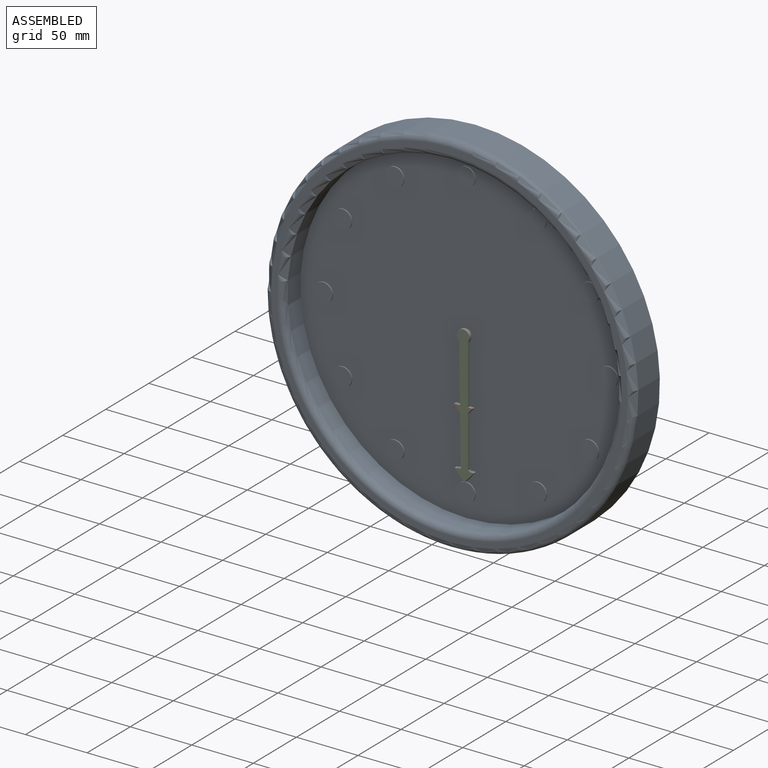
[diagram: assembled view]
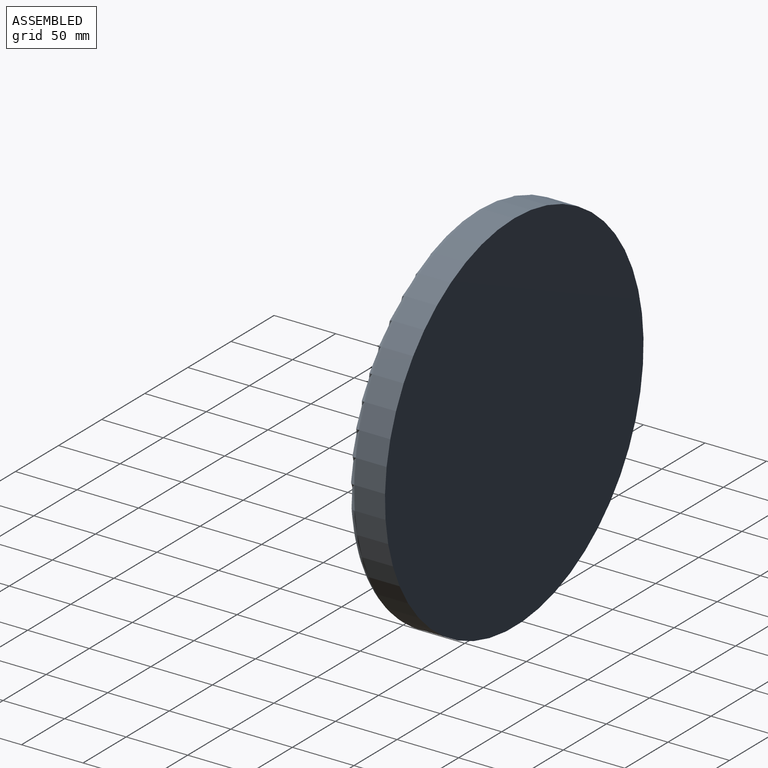
[diagram: assembled view, second angle]
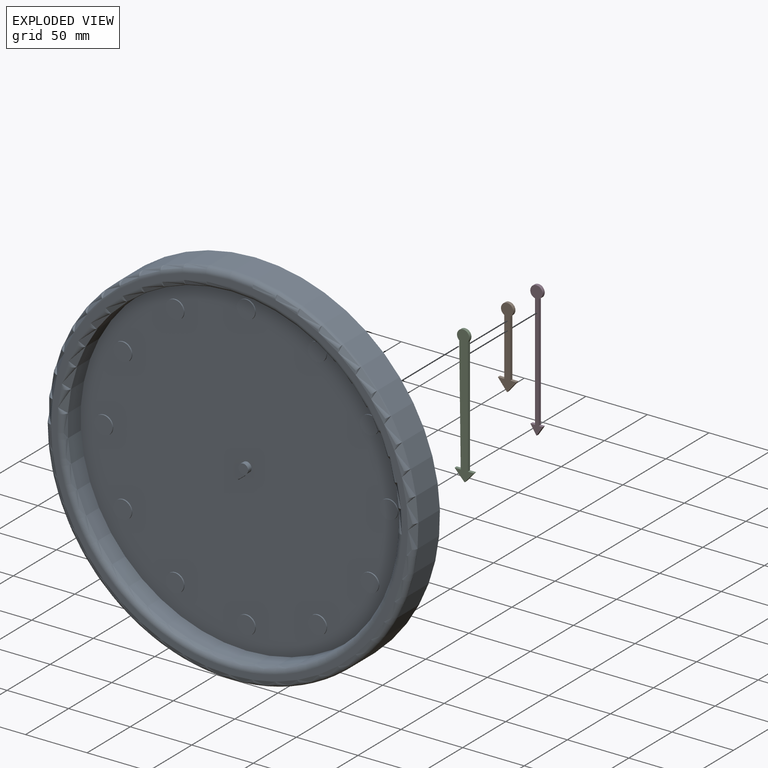
[diagram: exploded view]
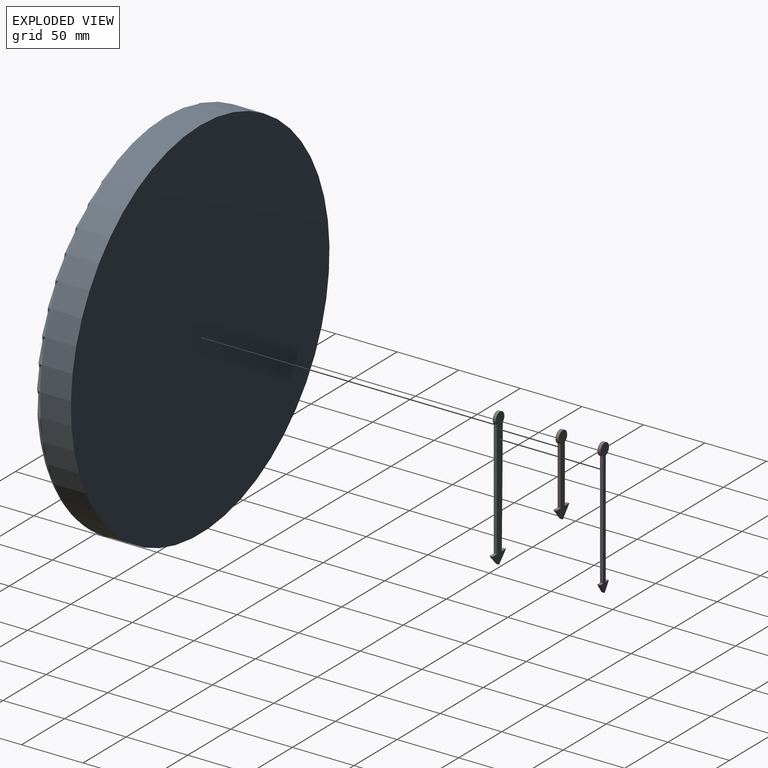
[diagram: exploded view, second angle]
ASSEMBLY  parts=4 mates=3
PART A: 33 faces, bbox 324.7x30x324.7 mm
  f0: plane 270x270mm, normal (0,-1,0), area 55084.7mm2, adj f1,f8,f9,f11,f13,f15,f17,f19
  f1: cylinder r=135mm len=270mm, axis (0,1,0), area 12723.5mm2, adj f0,f2
  f2: torus R=140mm, axis (0,1,0), area 6751.6mm2, adj f1,f3
  f3: plane 290x290mm, normal (0,-1,0), area 4476.8mm2, adj f2,f4
  f4: torus R=145mm, axis (0,1,0), area 7312.5mm2, adj f3,f5
  f5: cylinder r=150mm len=300mm, axis (0,1,0), area 23561.9mm2, adj f4,f6
  f6: plane 300x300mm, normal (0,1,0), area 70685.8mm2, adj f5
  f7: plane 8x8mm, normal (0,-1,0), area 50.3mm2, adj f8
  f8: cylinder r=4mm len=8mm, axis (0,1,0), area 100.7mm2, adj f0,f7
  f9: cylinder r=7.5mm len=15mm, axis (0,1,0), area 47.1mm2, adj f0,f10
  f10: plane 15x15mm, normal (0,-1,0), area 176.7mm2, adj f9
  f11: cylinder r=7.5mm len=15mm, axis (0,1,0), area 47.1mm2, adj f0,f12
  f12: plane 15x15mm, normal (0,-1,0), area 176.7mm2, adj f11
  f13: cylinder r=7.5mm len=15mm, axis (0,1,0), area 47.1mm2, adj f0,f14
  f14: plane 15x15mm, normal (0,-1,0), area 176.7mm2, adj f13
  f15: cylinder r=7.5mm len=15mm, axis (0,1,0), area 47.1mm2, adj f0,f16
  f16: plane 15x15mm, normal (0,-1,0), area 176.7mm2, adj f15
  f17: cylinder r=7.5mm len=15mm, axis (0,1,0), area 47.1mm2, adj f0,f18
  f18: plane 15x15mm, normal (0,-1,0), area 176.7mm2, adj f17
  f19: cylinder r=7.5mm len=15mm, axis (0,1,0), area 47.1mm2, adj f0,f20
  f20: plane 15x15mm, normal (0,-1,0), area 176.7mm2, adj f19
  f21: cylinder r=7.5mm len=15mm, axis (0,1,0), area 47.1mm2, adj f0,f22
  f22: plane 15x15mm, normal (0,-1,0), area 176.7mm2, adj f21
  f23: cylinder r=7.5mm len=15mm, axis (0,1,0), area 47.1mm2, adj f0,f24
  f24: plane 15x15mm, normal (0,-1,0), area 176.7mm2, adj f23
  f25: cylinder r=7.5mm len=15mm, axis (0,1,0), area 47.1mm2, adj f0,f26
  f26: plane 15x15mm, normal (0,-1,0), area 176.7mm2, adj f25
  f27: cylinder r=7.5mm len=15mm, axis (0,1,0), area 47.1mm2, adj f0,f28
  f28: plane 15x15mm, normal (0,-1,0), area 176.7mm2, adj f27
  f29: cylinder r=7.5mm len=15mm, axis (0,1,0), area 47.1mm2, adj f0,f30
  f30: plane 15x15mm, normal (0,-1,0), area 176.7mm2, adj f29
  f31: cylinder r=7.5mm len=15mm, axis (0,1,0), area 47.1mm2, adj f0,f32
  f32: plane 15x15mm, normal (0,-1,0), area 176.7mm2, adj f31
PART B: 9 faces, bbox 15x2.5x65.6 mm
  f0: cylinder r=5mm len=10mm, axis (0,1,0), area 65.7mm2, adj f1,f6,f7,f8
  f1: plane 46.96x2.5mm, normal (-1,0,0), area 117.4mm2, adj f0,f2,f7,f8
  f2: plane 5.2x2.5mm, normal (0,0,1), area 13mm2, adj f1,f3,f7,f8
  f3: plane 9.21x7.57mm, normal (-0.77,0,-0.64), area 29.8mm2, adj f2,f4,f7,f8
  f4: plane 9.24x7.47mm, normal (0.78,0,-0.63), area 29.7mm2, adj f3,f5,f7,f8
  f5: plane 4.93x2.5mm, normal (0,0,1), area 12.3mm2, adj f4,f6,f7,f8
  f6: plane 47.04x2.5mm, normal (1,0,0), area 117.6mm2, adj f0,f5,f7,f8
  f7: plane 65.58x15.05mm, normal (0,-1,0), area 376.8mm2, adj f0,f1,f2,f3,f4,f5,f6
  f8: plane 65.58x15.05mm, normal (0,1,0), area 376.8mm2, adj f0,f1,f2,f3,f4,f5,f6
PART C: 9 faces, bbox 15.8x2.5x112 mm
  f0: cylinder r=5mm len=10mm, axis (0,1,0), area 59.2mm2, adj f1,f6,f7,f8
  f1: plane 94.44x2.5mm, normal (-1,0,-0.01), area 236.1mm2, adj f0,f2,f7,f8
  f2: plane 5.01x2.5mm, normal (0,0,1), area 12.5mm2, adj f1,f3,f7,f8
  f3: plane 8.67x8.15mm, normal (-0.73,0,-0.68), area 29.7mm2, adj f2,f4,f7,f8
  f4: plane 8.67x7.64mm, normal (0.75,0,-0.66), area 28.9mm2, adj f3,f5,f7,f8
  f5: plane 5x2.5mm, normal (0,0,1), area 12.5mm2, adj f4,f6,f7,f8
  f6: plane 95.03x2.5mm, normal (1,0,0), area 237.6mm2, adj f0,f5,f7,f8
  f7: plane 111.96x15.79mm, normal (0,-1,0), area 744.5mm2, adj f0,f1,f2,f3,f4,f5,f6
  f8: plane 111.96x15.79mm, normal (0,1,0), area 744.5mm2, adj f0,f1,f2,f3,f4,f5,f6
PART D: 9 faces, bbox 10.2x2.5x110.4 mm
  f0: plane 93.18x2.5mm, normal (1,0,0), area 232.9mm2, adj f1,f6,f7,f8
  f1: cylinder r=5mm len=10mm, axis (0,1,0), area 70.9mm2, adj f0,f2,f7,f8
  f2: plane 92.93x2.5mm, normal (-1,0,0), area 232.3mm2, adj f1,f3,f7,f8
  f3: plane 3.74x2.5mm, normal (0,0,1), area 9.3mm2, adj f2,f4,f7,f8
  f4: plane 7.62x4.92mm, normal (-0.84,0,-0.54), area 22.7mm2, adj f3,f5,f7,f8
  f5: plane 7.62x5.11mm, normal (0.83,0,-0.56), area 22.9mm2, adj f4,f6,f7,f8
  f6: plane 3.29x2.5mm, normal (0,0,1), area 8.2mm2, adj f0,f5,f7,f8
  f7: plane 110.42x10.18mm, normal (0,-1,0), area 395.7mm2, adj f0,f1,f2,f3,f4,f5,f6
  f8: plane 110.42x10.18mm, normal (0,1,0), area 395.7mm2, adj f0,f1,f2,f3,f4,f5,f6
PLACE A t=(-628.82,-17.52,-195.94)mm fixed
PLACE B t=(-609.46,8.51,-197.16)mm
PLACE C t=(-670.27,8.51,-196.04)mm
PLACE D t=(-650.82,8.51,-195.55)mm
MATE revolute C.f0 <-> A.f1  axis (0,-1,0) through (-628.82,6.01,-97.74)mm
MATE revolute D.f1 <-> A.f1  axis (0,-1,0) through (-628.82,6.01,-97.74)mm
MATE revolute B.f0 <-> A.f1  axis (0,-1,0) through (-628.82,6.01,-97.74)mm
